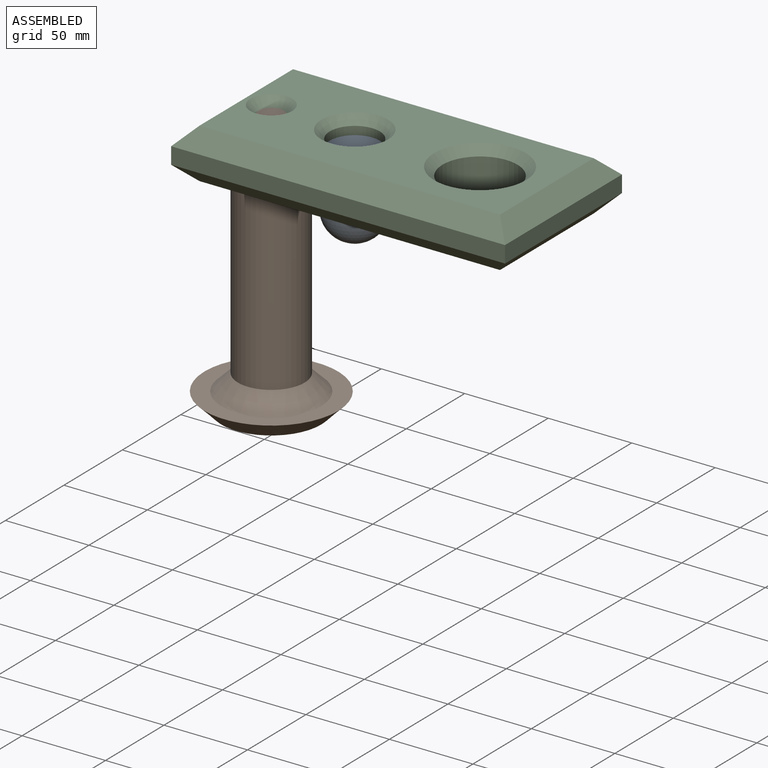
[diagram: assembled view]
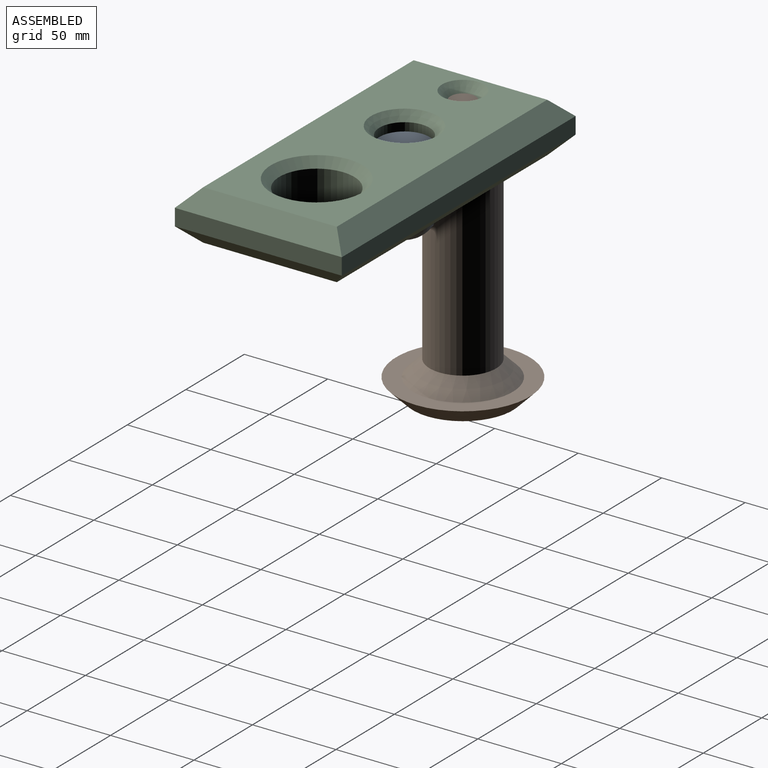
[diagram: assembled view, second angle]
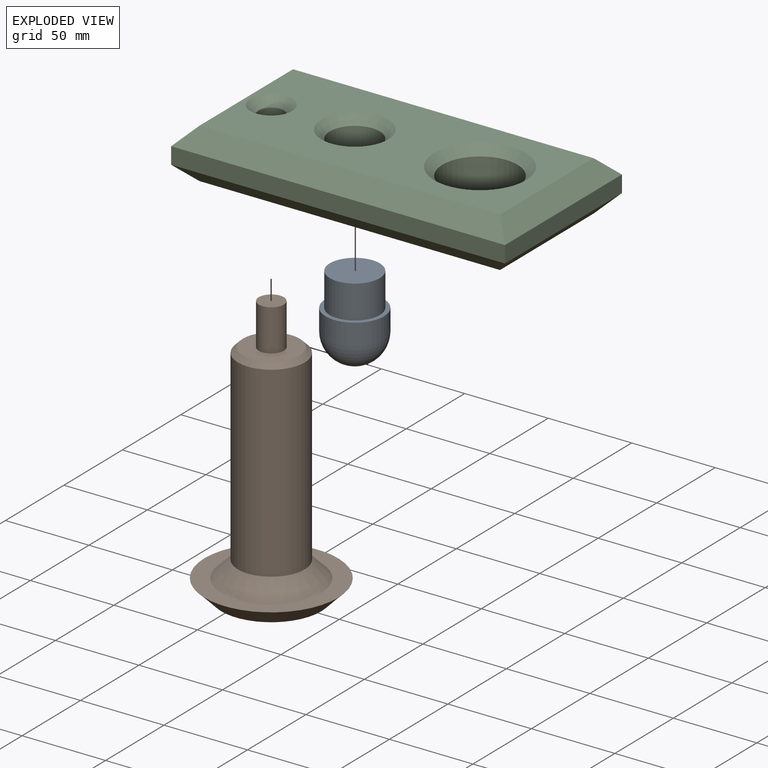
[diagram: exploded view]
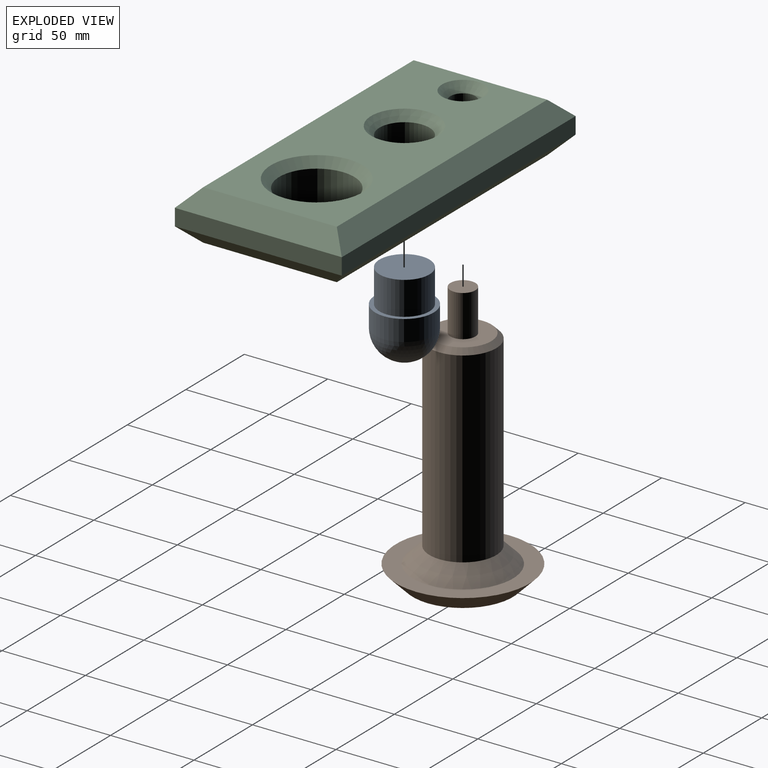
[diagram: exploded view, second angle]
ASSEMBLY  parts=3 mates=2
PART A: 5 faces, bbox 50x35x35 mm
  f0: sphere r=17.5mm, area 1924.2mm2, adj f1
  f1: cylinder r=17.5mm len=35mm, axis (-1,0,0), area 1374.4mm2, adj f0,f2
  f2: plane 35x35mm, normal (-1,0,0), area 255.3mm2, adj f1,f3
  f3: cylinder r=15mm len=30mm, axis (-1,0,0), area 1885mm2, adj f2,f4
  f4: plane 30x30mm, normal (-1,0,0), area 706.9mm2, adj f3
PART B: 9 faces, bbox 160x80x80 mm
  f0: plane 60x60mm, normal (1,0,0), area 2827.4mm2, adj f7
  f1: plane 80x80mm, normal (-1,0,0), area 2199.1mm2, adj f7,f8
  f2: cylinder r=20mm len=112mm, axis (1,0,0), area 14074.3mm2, adj f6,f8
  f3: plane 34x34mm, normal (-1,0,0), area 731.2mm2, adj f4,f6
  f4: cylinder r=7.5mm len=25mm, axis (1,0,0), area 1178.1mm2, adj f3,f5
  f5: plane 15x15mm, normal (-1,0,0), area 176.7mm2, adj f4
  f6: cone r=20mm half-angle=45deg, axis (1,0,0), area 493.2mm2, adj f2,f3
  f7: cone r=30mm half-angle=45deg, axis (-1,0,0), area 3110mm2, adj f0,f1
  f8: cone r=30mm half-angle=45deg, axis (1,0,0), area 2221.4mm2, adj f1,f2
PART C: 20 faces, bbox 200x100x30 mm
  f0: plane 100x10mm, normal (1,0,0), area 1000mm2, adj f1,f6,f12,f16
  f1: plane 200x10mm, normal (0,1,0), area 2000mm2, adj f0,f2,f11,f15
  f2: plane 100x10mm, normal (-1,0,0), area 1000mm2, adj f1,f6,f9,f13
  f3: cylinder r=22.5mm len=45mm, axis (0,0,-1), area 3534.3mm2, adj f8,f17
  f4: cylinder r=15mm len=30mm, axis (0,0,-1), area 2356.2mm2, adj f8,f19
  f5: cylinder r=7.5mm len=25mm, axis (0,0,-1), area 1178.1mm2, adj f8,f18
  f6: plane 200x10mm, normal (0,-1,0), area 2000mm2, adj f0,f2,f10,f14
  f7: plane 180x80mm, normal (0,0,1), area 10276.7mm2, adj f13,f14,f15,f16,f17,f18,f19
  f8: plane 180x80mm, normal (0,0,-1), area 11926mm2, adj f3,f4,f5,f9,f10,f11,f12
  f9: plane 100x10mm, normal (-0.71,0,-0.71), area 1272.8mm2, adj f2,f8,f10,f11
  f10: plane 200x10mm, normal (0,-0.71,-0.71), area 2687mm2, adj f6,f8,f9,f12
  f11: plane 200x10mm, normal (0,0.71,-0.71), area 2687mm2, adj f1,f8,f9,f12
  f12: plane 100x10mm, normal (0.71,0,-0.71), area 1272.8mm2, adj f0,f8,f10,f11
  f13: plane 100x10mm, normal (-0.71,0,0.71), area 1272.8mm2, adj f2,f7,f14,f15
  f14: plane 200x10mm, normal (0,-0.71,0.71), area 2687mm2, adj f6,f7,f13,f16
  f15: plane 200x10mm, normal (0,0.71,0.71), area 2687mm2, adj f1,f7,f13,f16
  f16: plane 100x10mm, normal (0.71,0,0.71), area 1272.8mm2, adj f0,f7,f14,f15
  f17: cone r=22.5mm half-angle=45deg, axis (0,0,1), area 1110.7mm2, adj f3,f7
  f18: cone r=7.5mm half-angle=45deg, axis (0,0,1), area 444.3mm2, adj f5,f7
  f19: cone r=15mm half-angle=45deg, axis (0,0,1), area 777.5mm2, adj f4,f7
PLACE A rot(axis=(0,1,0),90deg) t=(62.77,44.97,-48.56)mm
PLACE B rot(axis=(0,1,0),90deg) t=(12.77,44.97,-11.06)mm
PLACE C t=(187.77,-5.03,-36.06)mm
MATE fastened A.f1 <-> C.f4  axis (0,0,1) through (62.77,44.97,-36.06)mm
MATE fastened C.f5 <-> B.f2  axis (0,0,-1) through (12.77,44.97,-36.06)mm
